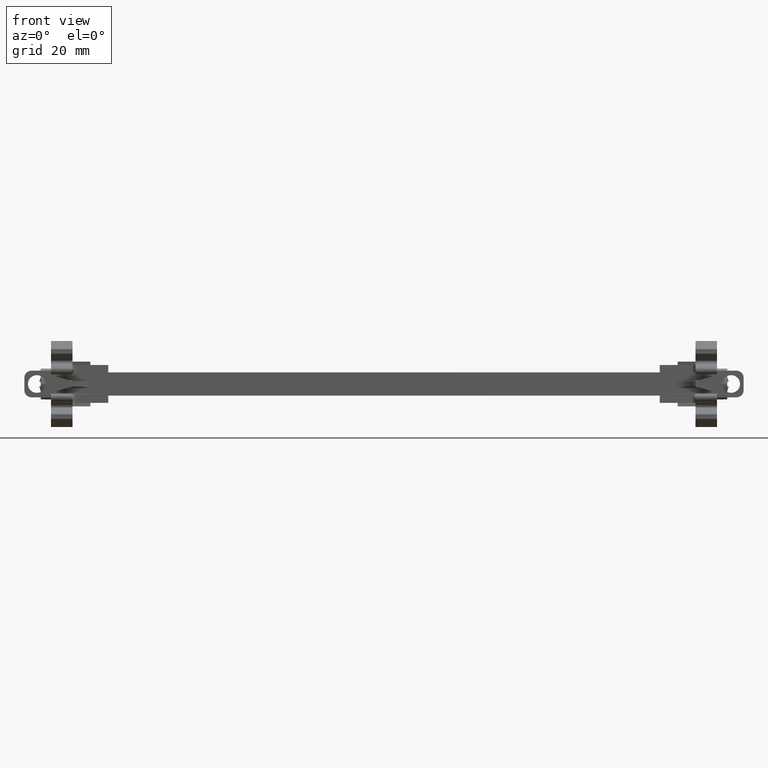
[diagram: clean part render]
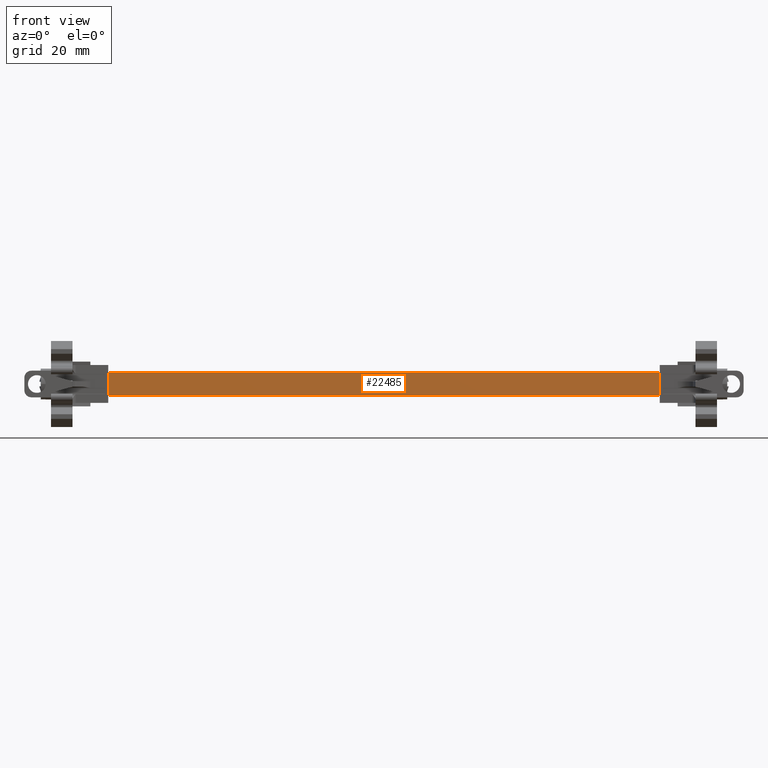
[diagram: same view with one face highlighted and labeled with its STEP entity id]
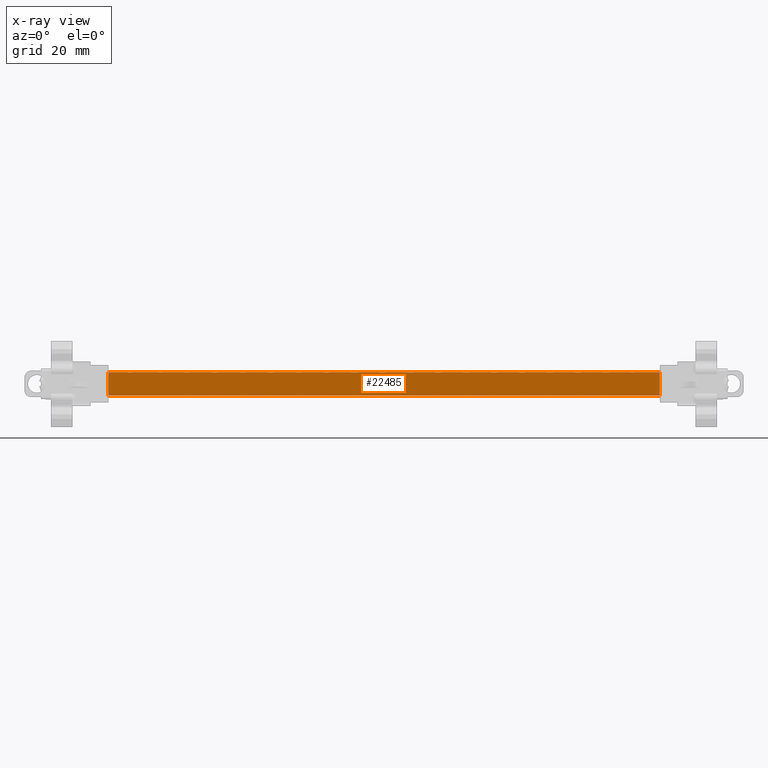
[diagram: x-ray of the same camera — body ghosted, the highlighted face saturated]
A machine part, front view. The second image highlights one B-rep face of the part: STEP entity #22485.
The next image is the same camera in x-ray: the body ghosted, the highlighted face saturated — about 0% of this face is hidden behind the body in this view.
In plain terms, the highlighted planar face has unit normal (0, 1, 0).
Its self-contained STEP definition (entity closure, byte-faithful):
#2316 = EDGE_LOOP ( 'NONE', ( #16405, #16383, #16362, #16367 ) ) ;
#4865 = FACE_OUTER_BOUND ( 'NONE', #2316, .T. ) ;
#4867 = DIRECTION ( 'NONE',  ( 0.0000000000000000000, -0.0000000000000000000, 1.000000000000000000 ) ) ;
#4870 = DIRECTION ( 'NONE',  ( 0.0000000000000000000, 1.000000000000000000, 0.0000000000000000000 ) ) ;
#4878 = PLANE ( 'NONE',  #13754 ) ;
#4908 = CARTESIAN_POINT ( 'NONE',  ( -90.10539649368639900, -45.46391012921959900, 99.25723811290720300 ) ) ;
#5134 = EDGE_CURVE ( 'NONE', #12283, #12390, #14386, .T. ) ;
#5161 = EDGE_CURVE ( 'NONE', #12321, #12282, #14464, .T. ) ;
#5184 = EDGE_CURVE ( 'NONE', #12390, #12321, #14656, .T. ) ;
#5825 = VECTOR ( 'NONE', #14399, 1000.000000000000000 ) ;
#5900 = VECTOR ( 'NONE', #14469, 1000.000000000000000 ) ;
#5930 = VECTOR ( 'NONE', #14658, 1000.000000000000000 ) ;
#12282 = VERTEX_POINT ( 'NONE', #17995 ) ;
#12283 = VERTEX_POINT ( 'NONE', #17957 ) ;
#12321 = VERTEX_POINT ( 'NONE', #17963 ) ;
#12390 = VERTEX_POINT ( 'NONE', #18047 ) ;
#13754 = AXIS2_PLACEMENT_3D ( 'NONE', #4908, #4870, #4867 ) ;
#14386 = LINE ( 'NONE', #14387, #5825 ) ;
#14387 = CARTESIAN_POINT ( 'NONE',  ( -42.03039649368587800, -45.46391012921959900, 99.25723811290720300 ) ) ;
#14399 = DIRECTION ( 'NONE',  ( -0.0000000000000000000, 0.0000000000000000000, -1.000000000000000000 ) ) ;
#14464 = LINE ( 'NONE', #14473, #5900 ) ;
#14469 = DIRECTION ( 'NONE',  ( 0.0000000000000000000, -0.0000000000000000000, 1.000000000000000000 ) ) ;
#14473 = CARTESIAN_POINT ( 'NONE',  ( -196.0303964936866000, -45.46391012921959900, 99.25723811290720300 ) ) ;
#14656 = LINE ( 'NONE', #14657, #5930 ) ;
#14657 = CARTESIAN_POINT ( 'NONE',  ( -90.10539649368639900, -45.46391012921959900, 92.75723811290720300 ) ) ;
#14658 = DIRECTION ( 'NONE',  ( -1.000000000000000000, -0.0000000000000000000, 0.0000000000000000000 ) ) ;
#16362 = ORIENTED_EDGE ( 'NONE', *, *, #5134, .F. ) ;
#16367 = ORIENTED_EDGE ( 'NONE', *, *, #16962, .T. ) ;
#16383 = ORIENTED_EDGE ( 'NONE', *, *, #5184, .F. ) ;
#16405 = ORIENTED_EDGE ( 'NONE', *, *, #5161, .F. ) ;
#16962 = EDGE_CURVE ( 'NONE', #12283, #12282, #20620, .T. ) ;
#17957 = CARTESIAN_POINT ( 'NONE',  ( -42.03039649368587000, -45.46391012921959900, 99.25723811290720300 ) ) ;
#17963 = CARTESIAN_POINT ( 'NONE',  ( -196.0303964936866000, -45.46391012921959900, 92.75723811290720300 ) ) ;
#17995 = CARTESIAN_POINT ( 'NONE',  ( -196.0303964936866200, -45.46391012921959900, 99.25723811290720300 ) ) ;
#18047 = CARTESIAN_POINT ( 'NONE',  ( -42.03039649368587000, -45.46391012921959900, 92.75723811290720300 ) ) ;
#20620 = LINE ( 'NONE', #20623, #30329 ) ;
#20623 = CARTESIAN_POINT ( 'NONE',  ( -90.10539649368639900, -45.46391012921959900, 99.25723811290720300 ) ) ;
#20627 = DIRECTION ( 'NONE',  ( -1.000000000000000000, 0.0000000000000000000, -0.0000000000000000000 ) ) ;
#22485 = ADVANCED_FACE ( 'NONE', ( #4865 ), #4878, .F. ) ;
#30329 = VECTOR ( 'NONE', #20627, 1000.000000000000000 ) ;